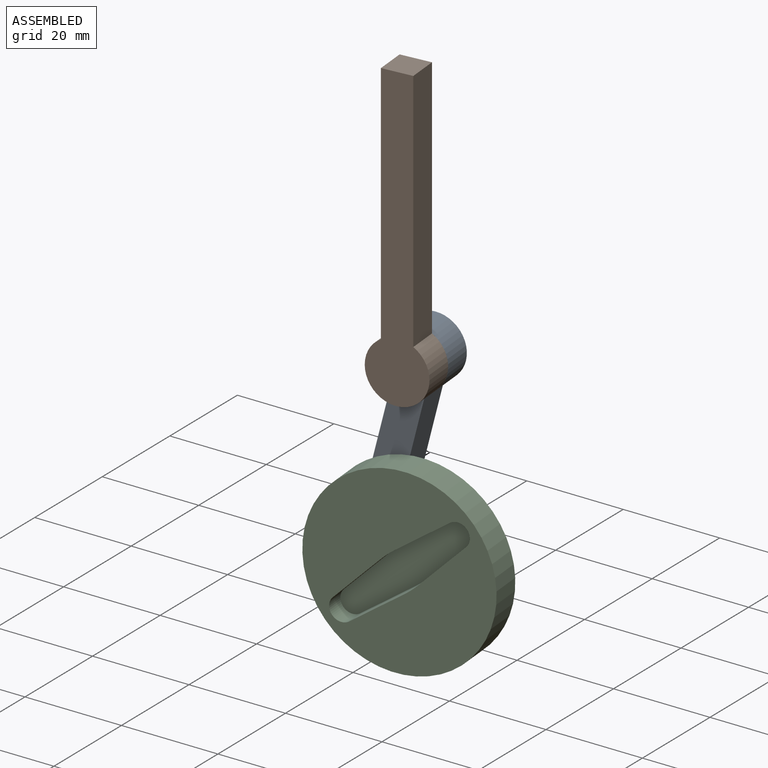
[diagram: assembled view]
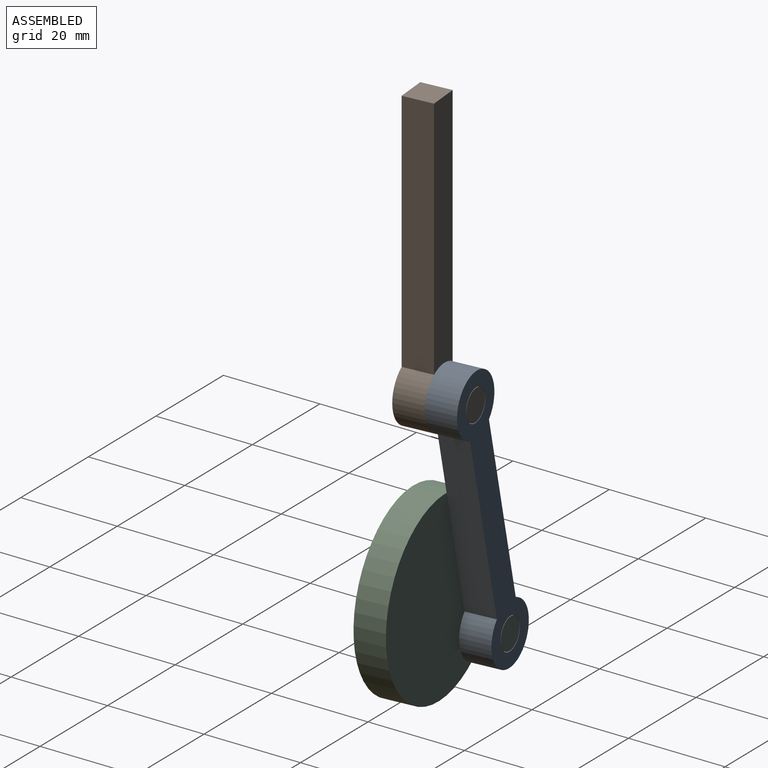
[diagram: assembled view, second angle]
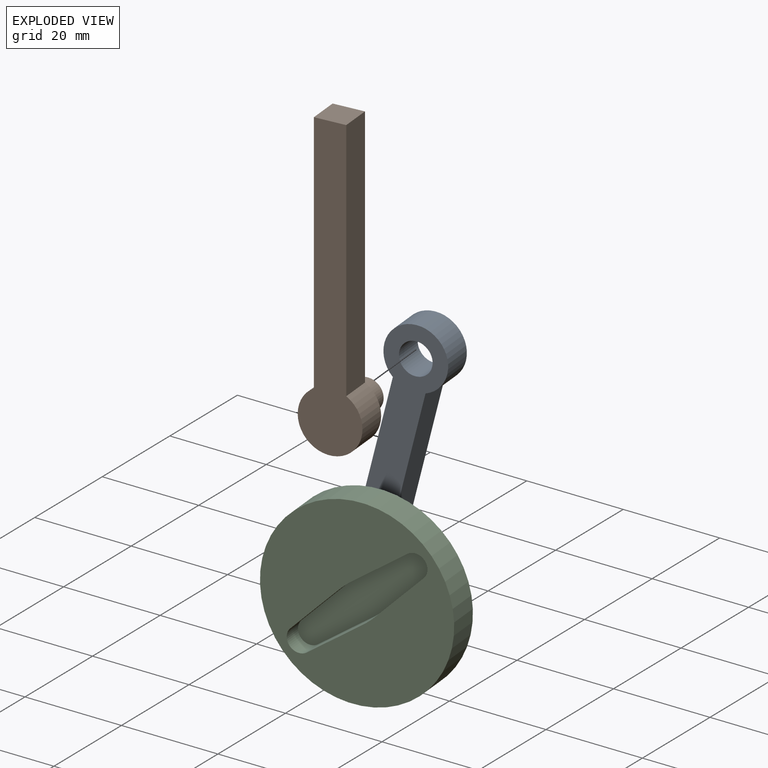
[diagram: exploded view]
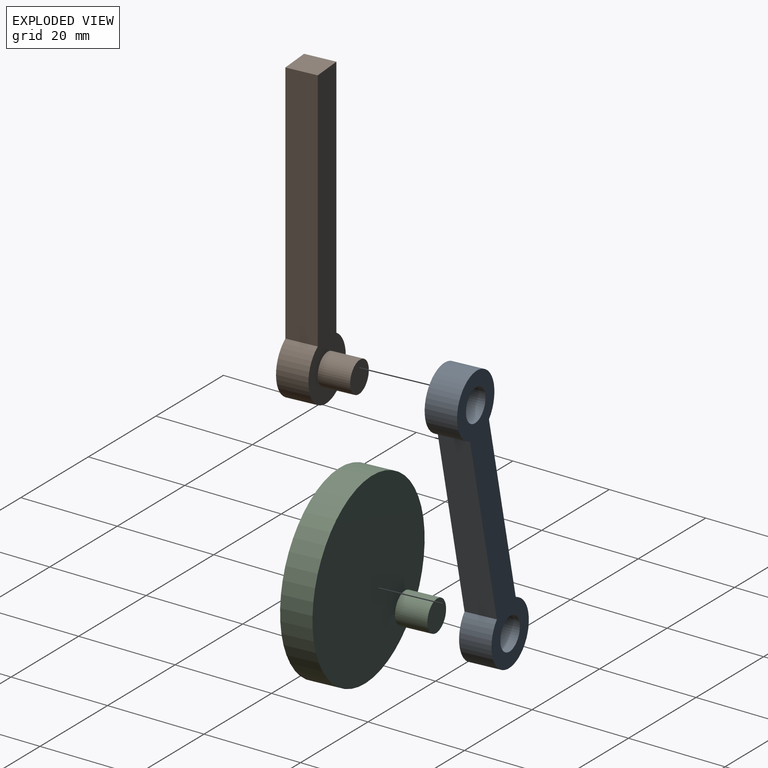
[diagram: exploded view, second angle]
ASSEMBLY  parts=3 mates=4
PART A: 8 faces, bbox 50.5x43.8x6.4 mm
  f0: cylinder r=6.35mm len=12.7mm, axis (0,0,-1), area 209.3mm2, adj f1,f3,f6,f7
  f1: plane 29.44x24.18mm, normal (-0.63,-0.77,0), area 241.9mm2, adj f0,f2,f6,f7
  f2: cylinder r=6.35mm len=12.7mm, axis (0,0,-1), area 209.3mm2, adj f1,f3,f6,f7
  f3: plane 29.44x24.18mm, normal (0.63,0.77,0), area 241.9mm2, adj f0,f2,f6,f7
  f4: cylinder r=3.3mm len=6.6mm, axis (0,0,-1), area 131.7mm2, adj f6,f7
  f5: cylinder r=3.3mm len=6.6mm, axis (0,0,-1), area 131.7mm2, adj f6,f7
  f6: plane 50.52x43.77mm, normal (0,0,1), area 428.2mm2, adj f0,f1,f2,f3,f4,f5
  f7: plane 50.52x43.77mm, normal (0,0,-1), area 428.2mm2, adj f0,f1,f2,f3,f4,f5
PART B: 8 faces, bbox 12.7x62.6x12.7 mm
  f0: plane 50.8x6.35mm, normal (-1,0,0), area 322.6mm2, adj f1,f3,f4,f5
  f1: cylinder r=6.35mm len=12.7mm, axis (0,0,-1), area 211.1mm2, adj f0,f2,f4,f5
  f2: plane 50.8x6.35mm, normal (1,0,0), area 322.6mm2, adj f1,f3,f4,f5
  f3: plane 6.35x6.35mm, normal (0,1,0), area 40.3mm2, adj f0,f2,f4,f5
  f4: plane 62.65x12.7mm, normal (0,0,1), area 413.9mm2, adj f0,f1,f2,f3,f6
  f5: plane 62.65x12.7mm, normal (0,0,-1), area 445.6mm2, adj f0,f1,f2,f3
  f6: cylinder r=3.17mm len=6.35mm, axis (0,0,-1), area 126.7mm2, adj f4,f7
  f7: plane 6.35x6.35mm, normal (0,0,1), area 31.7mm2, adj f6
PART C: 14 faces, bbox 38.1x38.1x12.7 mm
  f0: plane 38.1x38.1mm, normal (0,0,1), area 936.2mm2, adj f1,f3,f4,f5,f6,f7,f8,f9
  f1: cylinder r=19.05mm len=38.1mm, axis (0,0,1), area 760.1mm2, adj f0,f2
  f2: plane 38.1x38.1mm, normal (0,0,-1), area 1108.4mm2, adj f1,f12
  f3: cylinder r=20mm len=3.81mm, axis (0,0,1), area 12.9mm2, adj f0,f4,f10,f11
  f4: plane 13.06x3.81mm, normal (-1,-0.08,0), area 49.9mm2, adj f0,f3,f5,f11
  f5: cylinder r=2.5mm len=5mm, axis (0,0,1), area 29.9mm2, adj f0,f4,f6,f11
  f6: plane 13.06x3.81mm, normal (1,-0.08,0), area 49.9mm2, adj f0,f5,f7,f11
  f7: cylinder r=20mm len=3.81mm, axis (0,0,1), area 12.9mm2, adj f0,f6,f8,f11
  f8: plane 13.06x3.81mm, normal (1,0.08,0), area 49.9mm2, adj f0,f7,f9,f11
  f9: cylinder r=2.5mm len=5mm, axis (0,0,1), area 29.9mm2, adj f0,f8,f10,f11
  f10: plane 13.06x3.81mm, normal (-1,0.08,0), area 49.9mm2, adj f0,f3,f9,f11
  f11: plane 34.5x7.36mm, normal (0,0,1), area 203.8mm2, adj f3,f4,f5,f6,f7,f8,f9,f10
  f12: cylinder r=3.17mm len=6.35mm, axis (0,0,1), area 126.7mm2, adj f2,f13
  f13: plane 6.35x6.35mm, normal (0,0,-1), area 31.7mm2, adj f12
PLACE A rot(axis=(0.74,0.51,-0.44),104.2deg) t=(-6.51,12.31,-58.65)mm
PLACE B rot(axis=(0.03,-0.71,-0.71),176.5deg) t=(-42.17,-3.56,-22.81)mm
PLACE C rot(axis=(0.83,0.43,-0.36),98.4deg) t=(8.99,0.92,-28.03)mm
MATE pin_slot C.f12 <-> A.f2  axis (-0.09,1,0) through (-4.23,12.51,-38.24)mm
MATE pin_slot A.f2 <-> C.f12  axis (-0.09,1,0) through (-4.23,12.51,-38.24)mm
MATE cylindrical B.f1 <-> A.f0  axis (-0.09,1,0) through (7.42,13.53,9.29)mm
MATE pin_slot B.f1 <-> A.f0  axis (-0.09,1,0) through (7.42,13.53,9.29)mm
